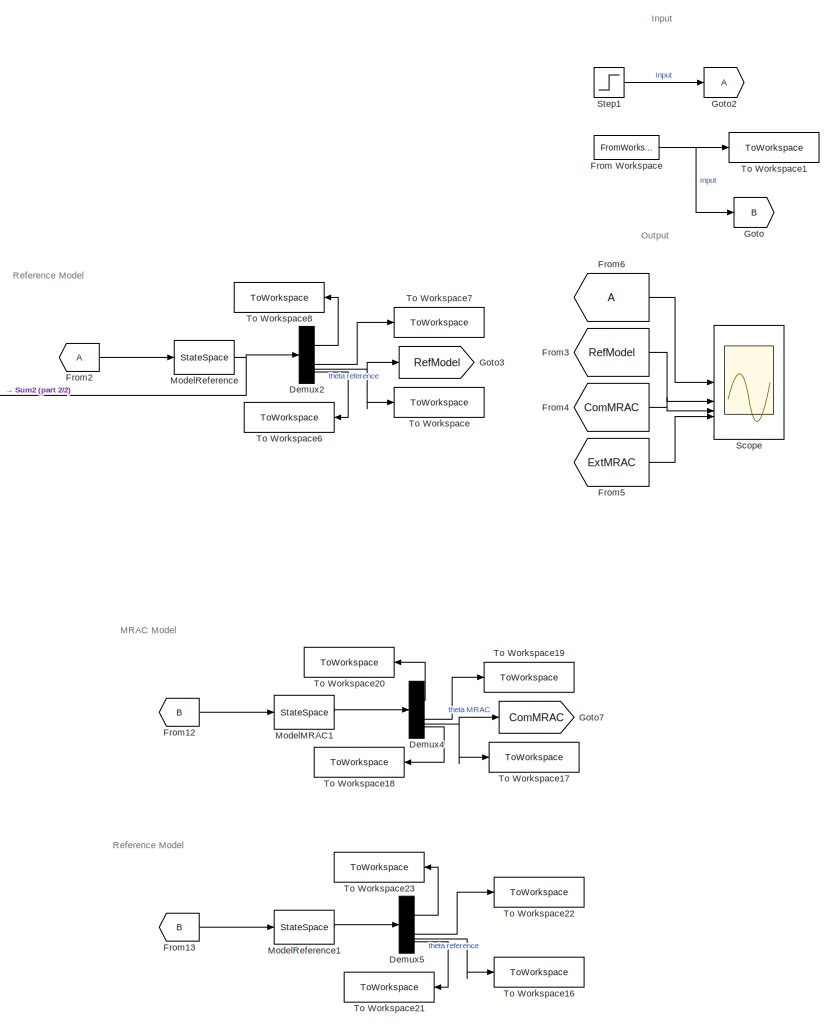
[diagram: root canvas - part 1/2, right side, full height]
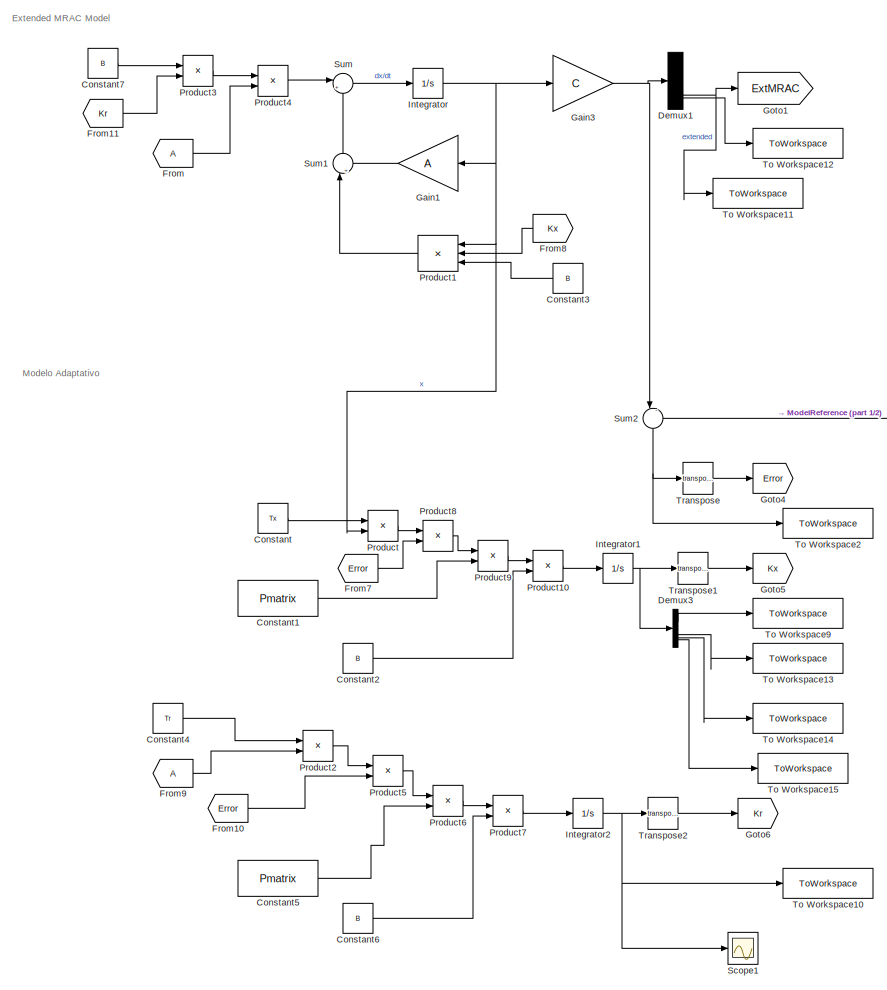
[diagram: root canvas - part 2/2, left side, full height]
MODEL slx_82d8eac7a9b0
KIND model
CONFIG AbsTol = auto
CONFIG EnableMultiTasking = off
CONFIG FixedStep = auto
CONFIG MaxStep = auto
CONFIG MinStep = auto
CONFIG RelTol = 1e-3
CONFIG SampleTimeConstraint = Unconstrained
CONFIG SolverName = VariableStepAuto
CONFIG StartTime = 0.0
CONFIG StopTime = 60
BLOCK [Constant] Constant
  Value = Tx
BLOCK [Constant] Constant1
  Value = Pmatrix
BLOCK [Constant] Constant2
  Value = B
BLOCK [Constant] Constant3
  NameLocation = top
  Value = B
BLOCK [Constant] Constant4
  Value = Tr
BLOCK [Constant] Constant5
  Value = Pmatrix
BLOCK [Constant] Constant6
  Value = B
BLOCK [Constant] Constant7
  Value = B
BLOCK [Demux] Demux1
BLOCK [Demux] Demux2
BLOCK [Demux] Demux3
BLOCK [Demux] Demux4
BLOCK [Demux] Demux5
BLOCK [From] From
BLOCK [FromWorkspace] From Workspace
  SampleTime = Ts
  VariableName = simInput
BLOCK [From] From10
  GotoTag = Error
BLOCK [From] From11
  GotoTag = Kr
BLOCK [From] From12
  GotoTag = B
BLOCK [From] From13
  GotoTag = B
BLOCK [From] From2
BLOCK [From] From3
  GotoTag = RefModel
BLOCK [From] From4
  GotoTag = ComMRAC
BLOCK [From] From5
  GotoTag = ExtMRAC
BLOCK [From] From6
BLOCK [From] From7
  GotoTag = Error
BLOCK [From] From8
  GotoTag = Kx
  NameLocation = top
BLOCK [From] From9
BLOCK [Gain] Gain1
  Gain = A
  Multiplication = Matrix(K*u)
  NameLocation = top
BLOCK [Gain] Gain3
  Gain = C
  Multiplication = Matrix(K*u)
BLOCK [Goto] Goto
  GotoTag = B
BLOCK [Goto] Goto1
  GotoTag = ExtMRAC
BLOCK [Goto] Goto2
BLOCK [Goto] Goto3
  GotoTag = RefModel
BLOCK [Goto] Goto4
  GotoTag = Error
BLOCK [Goto] Goto5
  GotoTag = Kx
BLOCK [Goto] Goto6
  GotoTag = Kr
BLOCK [Goto] Goto7
  GotoTag = ComMRAC
BLOCK [Integrator] Integrator
BLOCK [Integrator] Integrator1
BLOCK [Integrator] Integrator2
BLOCK [StateSpace] ModelMRAC1
  A = ModelMRAC.A
  B = ModelMRAC.B
  C = ModelMRAC.C
  D = ModelMRAC.D
  InitialCondition = 0
  ParameterTunability = Unconstrained
BLOCK [StateSpace] ModelReference
  A = ModelReference.A
  B = ModelReference.B
  C = ModelReference.C
  D = ModelReference.D
  InitialCondition = 0
  ParameterTunability = Unconstrained
BLOCK [StateSpace] ModelReference1
  A = ModelReference.A
  B = ModelReference.B
  C = ModelReference.C
  D = ModelReference.D
  InitialCondition = 0
  ParameterTunability = Unconstrained
BLOCK [Product] Product
  Multiplication = Matrix(*)
BLOCK [Product] Product1
  Inputs = 3
  Multiplication = Matrix(*)
  NameLocation = top
BLOCK [Product] Product10
  Multiplication = Matrix(*)
BLOCK [Product] Product2
BLOCK [Product] Product3
  Multiplication = Matrix(*)
BLOCK [Product] Product4
  Multiplication = Matrix(*)
BLOCK [Product] Product5
  Multiplication = Matrix(*)
BLOCK [Product] Product6
  Multiplication = Matrix(*)
BLOCK [Product] Product7
  Multiplication = Matrix(*)
BLOCK [Product] Product8
  Multiplication = Matrix(*)
BLOCK [Product] Product9
  Multiplication = Matrix(*)
BLOCK [Scope] Scope
  Floating = off
  NumInputPorts = 4
  ScopeSpecificationString = Simulink.scopes.TimeScopeBlockCfg('CurrentConfiguration', extmgr.ConfigurationSet(extmgr.Configuration('Core','General UI',true),extmgr.Configuration('Core','Source UI',true),extmgr.Configuration('Sources','WiredSimulink',true),extmgr.Configuration('Visuals','Time Domain',true,'SerializedDisplays',{struct('MinYLimReal','-1800.12953','MaxYLimReal','202.27318','YLabelReal','','MinYLimMag','  0.00000...<+1422ch>
BLOCK [Scope] Scope1
  Floating = off
  NumInputPorts = 1
  ScopeSpecificationString = Simulink.scopes.TimeScopeBlockCfg('CurrentConfiguration', extmgr.ConfigurationSet(extmgr.Configuration('Core','General UI',true),extmgr.Configuration('Core','Source UI',true),extmgr.Configuration('Sources','WiredSimulink',true,'DataLoggingVariableName','ScopeData1'),extmgr.Configuration('Visuals','Time Domain',true,'SerializedDisplays',{struct('MinYLimReal','-206.18844','MaxYLimReal','1855.69594',...<+1417ch>
BLOCK [Step] Step1
  SampleTime = 0
BLOCK [Sum] Sum
  Inputs = |++
BLOCK [Sum] Sum1
  Inputs = |++
  NameLocation = right
BLOCK [Sum] Sum2
  Inputs = |-+
  NameLocation = left
BLOCK [ToWorkspace] To Workspace
  FixptAsFi = on
  MaxDataPoints = inf
  SampleTime = -1
  SaveFormat = Timeseries
  VariableName = modelRefTheta
BLOCK [ToWorkspace] To Workspace1
  FixptAsFi = on
  MaxDataPoints = inf
  SampleTime = Ts
  SaveFormat = Timeseries
  VariableName = input
BLOCK [ToWorkspace] To Workspace10
  FixptAsFi = on
  MaxDataPoints = inf
  SampleTime = -1
  SaveFormat = Timeseries
  VariableName = Kr
BLOCK [ToWorkspace] To Workspace11
  FixptAsFi = on
  MaxDataPoints = inf
  SampleTime = -1
  SaveFormat = Timeseries
  VariableName = thetaAdap
BLOCK [ToWorkspace] To Workspace12
  FixptAsFi = on
  MaxDataPoints = inf
  SampleTime = -1
  SaveFormat = Timeseries
  VariableName = qAdap
BLOCK [ToWorkspace] To Workspace13
  FixptAsFi = on
  MaxDataPoints = inf
  SampleTime = -1
  SaveFormat = Timeseries
  VariableName = Kx2
BLOCK [ToWorkspace] To Workspace14
  FixptAsFi = on
  MaxDataPoints = inf
  SampleTime = -1
  SaveFormat = Timeseries
  VariableName = Kx3
BLOCK [ToWorkspace] To Workspace15
  FixptAsFi = on
  MaxDataPoints = inf
  SampleTime = -1
  SaveFormat = Timeseries
  VariableName = Kx4
BLOCK [ToWorkspace] To Workspace16
  FixptAsFi = on
  MaxDataPoints = inf
  SampleTime = -1
  SaveFormat = Timeseries
  VariableName = modelRefTheta1
BLOCK [ToWorkspace] To Workspace17
  FixptAsFi = on
  MaxDataPoints = inf
  SampleTime = -1
  SaveFormat = Timeseries
  VariableName = MRACTheta
BLOCK [ToWorkspace] To Workspace18
  FixptAsFi = on
  MaxDataPoints = inf
  NameLocation = top
  SampleTime = -1
  SaveFormat = Timeseries
  VariableName = MRACq
BLOCK [ToWorkspace] To Workspace19
  FixptAsFi = on
  MaxDataPoints = inf
  SampleTime = -1
  SaveFormat = Timeseries
  VariableName = MRACu_z
BLOCK [ToWorkspace] To Workspace2
  FixptAsFi = on
  MaxDataPoints = inf
  SampleTime = -1
  SaveFormat = Timeseries
  VariableName = error
BLOCK [ToWorkspace] To Workspace20
  FixptAsFi = on
  MaxDataPoints = inf
  NameLocation = top
  SampleTime = -1
  SaveFormat = Timeseries
  VariableName = MRACu_x
BLOCK [ToWorkspace] To Workspace21
  FixptAsFi = on
  MaxDataPoints = inf
  NameLocation = top
  SampleTime = -1
  SaveFormat = Timeseries
  VariableName = modelRefq1
BLOCK [ToWorkspace] To Workspace22
  FixptAsFi = on
  MaxDataPoints = inf
  SampleTime = -1
  SaveFormat = Timeseries
  VariableName = modelRefu_z1
BLOCK [ToWorkspace] To Workspace23
  FixptAsFi = on
  MaxDataPoints = inf
  NameLocation = top
  SampleTime = -1
  SaveFormat = Timeseries
  VariableName = modelRefu_x1
BLOCK [ToWorkspace] To Workspace6
  FixptAsFi = on
  MaxDataPoints = inf
  NameLocation = top
  SampleTime = -1
  SaveFormat = Timeseries
  VariableName = modelRefq
BLOCK [ToWorkspace] To Workspace7
  FixptAsFi = on
  MaxDataPoints = inf
  SampleTime = -1
  SaveFormat = Timeseries
  VariableName = modelRefu_z
BLOCK [ToWorkspace] To Workspace8
  FixptAsFi = on
  MaxDataPoints = inf
  NameLocation = top
  SampleTime = -1
  SaveFormat = Timeseries
  VariableName = modelRefu_x
BLOCK [ToWorkspace] To Workspace9
  FixptAsFi = on
  MaxDataPoints = inf
  SampleTime = -1
  SaveFormat = Timeseries
  VariableName = Kx1
BLOCK [Math] Transpose
  Operator = transpose
BLOCK [Math] Transpose1
  Operator = transpose
BLOCK [Math] Transpose2
  Operator = transpose
ANNOTATION (root): Input
ANNOTATION (root): Output
ANNOTATION (root): Extended MRAC Model
ANNOTATION (root): MRAC Model
ANNOTATION (root): Modelo Adaptativo
ANNOTATION (root): Reference Model
LINE Constant1:1 -> Product9:2
LINE Constant2:1 -> Product10:2
LINE Constant3:1 -> Product1:3
LINE Constant4:1 -> Product2:1
LINE Constant5:1 -> Product6:2
LINE Constant6:1 -> Product7:2
LINE Constant7:1 -> Product3:1
LINE Constant:1 -> Product:1
NET Demux1:3 -> Goto1:1, To Workspace11:1
LINE Demux1:4 -> To Workspace12:1
LINE Demux2:1 -> To Workspace8:1
LINE Demux2:2 -> To Workspace7:1
NET Demux2:3 -> Goto3:1, To Workspace:1
LINE Demux2:4 -> To Workspace6:1
LINE Demux3:1 -> To Workspace9:1
LINE Demux3:2 -> To Workspace13:1
LINE Demux3:3 -> To Workspace14:1
LINE Demux3:4 -> To Workspace15:1
LINE Demux4:1 -> To Workspace20:1
LINE Demux4:2 -> To Workspace19:1
NET Demux4:3 -> Goto7:1, To Workspace17:1
LINE Demux4:4 -> To Workspace18:1
LINE Demux5:1 -> To Workspace23:1
LINE Demux5:2 -> To Workspace22:1
LINE Demux5:3 -> To Workspace16:1
LINE Demux5:4 -> To Workspace21:1
NET From Workspace:1 -> Goto:1, To Workspace1:1
LINE From10:1 -> Product5:2
LINE From11:1 -> Product3:2
LINE From12:1 -> ModelMRAC1:1
LINE From13:1 -> ModelReference1:1
LINE From2:1 -> ModelReference:1
LINE From3:1 -> Scope:2
LINE From4:1 -> Scope:3
LINE From5:1 -> Scope:4
LINE From6:1 -> Scope:1
LINE From7:1 -> Product8:2
LINE From8:1 -> Product1:2
LINE From9:1 -> Product2:2
LINE From:1 -> Product4:2
LINE Gain1:1 -> Sum1:2
NET Gain3:1 -> Demux1:1, Sum2:1
NET Integrator1:1 -> Demux3:1, Transpose1:1
NET Integrator2:1 -> Scope1:1, To Workspace10:1, Transpose2:1
NET Integrator:1 -> Gain1:1, Gain3:1, Product1:1, Product:2
LINE ModelMRAC1:1 -> Demux4:1
LINE ModelReference1:1 -> Demux5:1
NET ModelReference:1 -> Demux2:1, Sum2:2
LINE Product10:1 -> Integrator1:1
LINE Product1:1 -> Sum1:1
LINE Product2:1 -> Product5:1
LINE Product3:1 -> Product4:1
LINE Product4:1 -> Sum:1
LINE Product5:1 -> Product6:1
LINE Product6:1 -> Product7:1
LINE Product7:1 -> Integrator2:1
LINE Product8:1 -> Product9:1
LINE Product9:1 -> Product10:1
LINE Product:1 -> Product8:1
LINE Step1:1 -> Goto2:1
LINE Sum1:1 -> Sum:2
NET Sum2:1 -> To Workspace2:1, Transpose:1
LINE Sum:1 -> Integrator:1
LINE Transpose1:1 -> Goto5:1
LINE Transpose2:1 -> Goto6:1
LINE Transpose:1 -> Goto4:1
note: NET lines group one-source signal fan-out (src -> all destinations, sorted); 1:1 wires keep LINE
